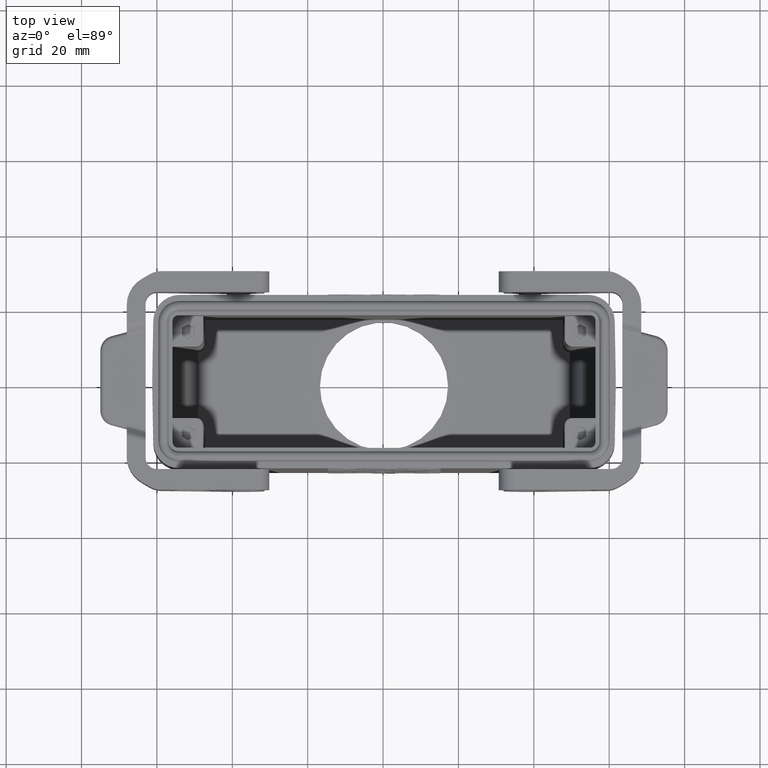
[diagram: clean part render]
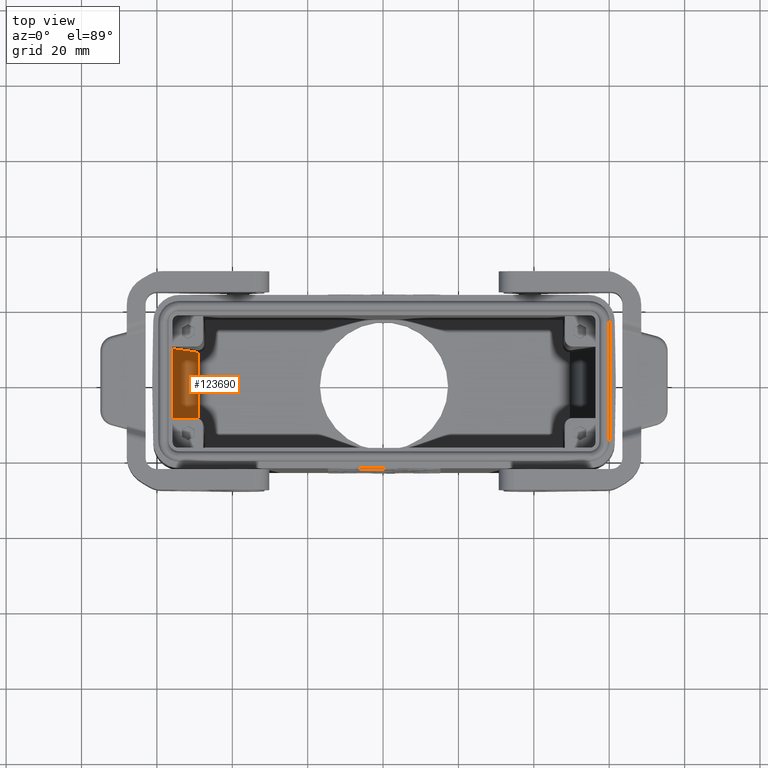
[diagram: same view with one face highlighted and labeled with its STEP entity id]
A machine part, top view. The second image highlights one B-rep face of the part: STEP entity #123690.
In plain terms, the highlighted planar face has unit normal (-0.9848, 0, -0.1736).
Its self-contained STEP definition (entity closure, byte-faithful):
#71260=CARTESIAN_POINT('',(46.5563898405001,94.100393,8.98866851922954))
;
#71270=VERTEX_POINT('',#71260);
#71300=CARTESIAN_POINT('',(46.5563898405001,94.100393,0.));
#71310=DIRECTION('',(2.15938272527935E-17,0.,1.));
#71320=VECTOR('',#71310,1.);
#71330=LINE('',#71300,#71320);
#71340=CARTESIAN_POINT('',(46.5563898405001,94.100393,-8.98866851923038)
);
#71350=VERTEX_POINT('',#71340);
#71360=EDGE_CURVE('',#71350,#71270,#71330,.T.);
#109220=CARTESIAN_POINT('',(46.7435905413341,93.0387250687401,
-10.9900925588955));
#109230=DIRECTION('',(0.984807753012209,0.173648177666928,
-2.12657684957574E-17));
#109240=DIRECTION('',(0.17364138104567,-0.984769207457637,
-0.00884753252667027));
#109250=AXIS2_PLACEMENT_3D('',#109220,#109230,#109240);
#109260=ELLIPSE('',#109250,12.1181773012838,2.);
#109270=CARTESIAN_POINT('',(46.7434302999395,93.0396338428482,
-8.99000847137257));
#109280=VERTEX_POINT('',#109270);
#109290=EDGE_CURVE('',#71350,#109280,#109260,.T.);
#110090=CARTESIAN_POINT('',(46.7434302999395,93.0396338428482,
8.99000847137173));
#110100=VERTEX_POINT('',#110090);
#110130=CARTESIAN_POINT('',(46.7435905413341,93.0387250687401,
10.9900925588947));
#110140=DIRECTION('',(0.984807753012209,0.173648177666928,
-2.12657684957574E-17));
#110150=DIRECTION('',(0.17364138104567,-0.984769207457637,
0.00884753252667051));
#110160=AXIS2_PLACEMENT_3D('',#110130,#110140,#110150);
#110170=ELLIPSE('',#110160,12.1181773012838,2.);
#110180=EDGE_CURVE('',#110100,#71270,#110170,.T.);
#112530=CARTESIAN_POINT('',(53.3494935281373,55.5747875575241,
9.31695923170486));
#112540=VERTEX_POINT('',#112530);
#112570=CARTESIAN_POINT('',(53.3080396457029,55.8098842073269,
9.31490757432398));
#112580=DIRECTION('',(0.173641765041276,-0.984771385204932,
0.00859396968280594));
#112590=VECTOR('',#112580,1.);
#112600=LINE('',#112570,#112590);
#112610=EDGE_CURVE('',#110100,#112540,#112600,.T.);
#112790=CARTESIAN_POINT('',(53.3080396457029,55.8098842073269,
-9.31490757432481));
#112800=DIRECTION('',(0.173641765041276,-0.984771385204932,
-0.00859396968280573));
#112810=VECTOR('',#112800,1.);
#112820=LINE('',#112790,#112810);
#112830=CARTESIAN_POINT('',(53.3494935281373,55.5747875575241,
-9.31695923170569));
#112840=VERTEX_POINT('',#112830);
#112850=EDGE_CURVE('',#109280,#112840,#112820,.T.);
#113980=CARTESIAN_POINT('',(53.3494935281373,55.5747875575241,0.));
#113990=DIRECTION('',(-1.06873307065347E-18,-1.16403593481114E-16,-1.));
#114000=VECTOR('',#113990,1.);
#114010=LINE('',#113980,#114000);
#114020=EDGE_CURVE('',#112540,#112840,#114010,.T.);
#123560=CARTESIAN_POINT('',(53.0375653656709,57.3438200743468,
-2.31953555087141E-14));
#123570=DIRECTION('',(0.984807753012209,0.173648177666928,
-2.12657684957574E-17));
#123580=DIRECTION('',(0.173648177666928,-0.984807753012209,
1.2060416625019E-16));
#123590=AXIS2_PLACEMENT_3D('',#123560,#123570,#123580);
#123600=PLANE('',#123590);
#123610=ORIENTED_EDGE('',*,*,#109290,.T.);
#123620=ORIENTED_EDGE('',*,*,#71360,.F.);
#123630=ORIENTED_EDGE('',*,*,#110180,.T.);
#123640=ORIENTED_EDGE('',*,*,#112610,.F.);
#123650=ORIENTED_EDGE('',*,*,#114020,.F.);
#123660=ORIENTED_EDGE('',*,*,#112850,.T.);
#123670=EDGE_LOOP('',(#123660,#123650,#123640,#123630,#123620,#123610));
#123680=FACE_OUTER_BOUND('',#123670,.T.);
#123690=ADVANCED_FACE('',(#123680),#123600,.F.);